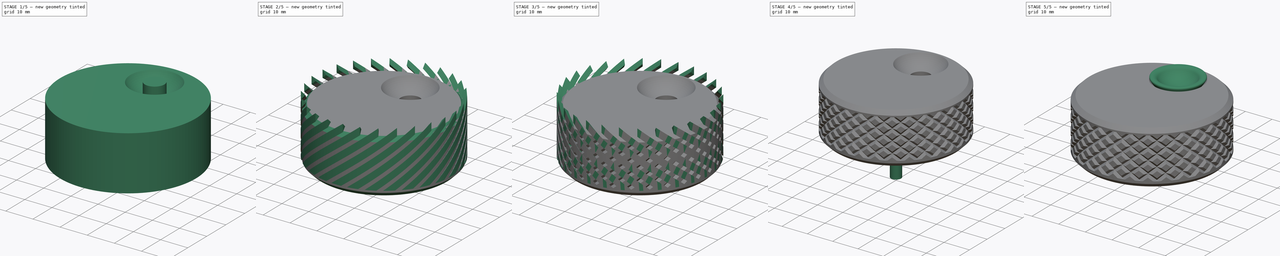
[diagram: build sequence overview — one tinted view per stage of 5, left to right]
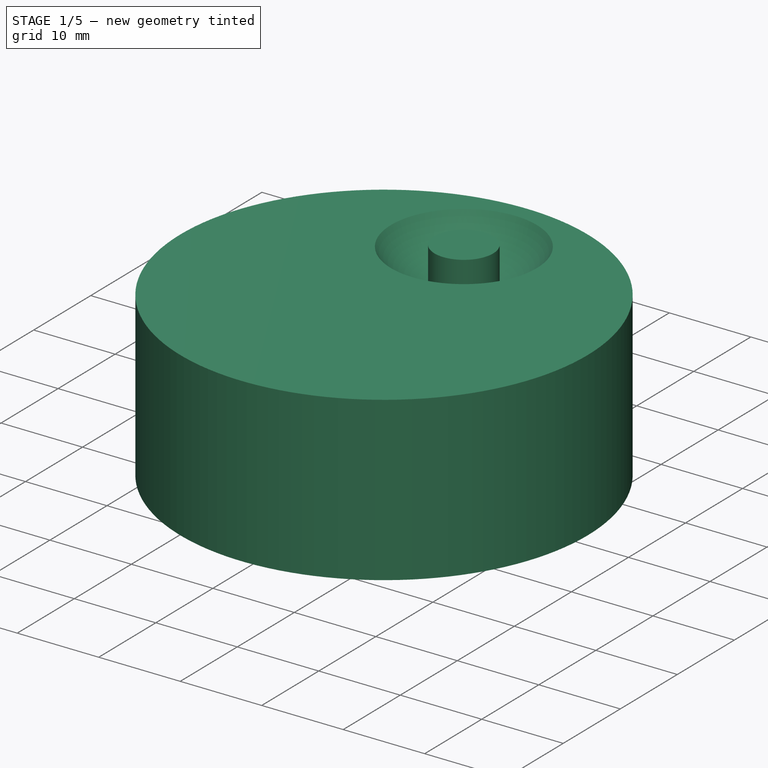
[diagram: stage 1 of 5 — iso view after this stage's code; geometry added in this stage tinted green]
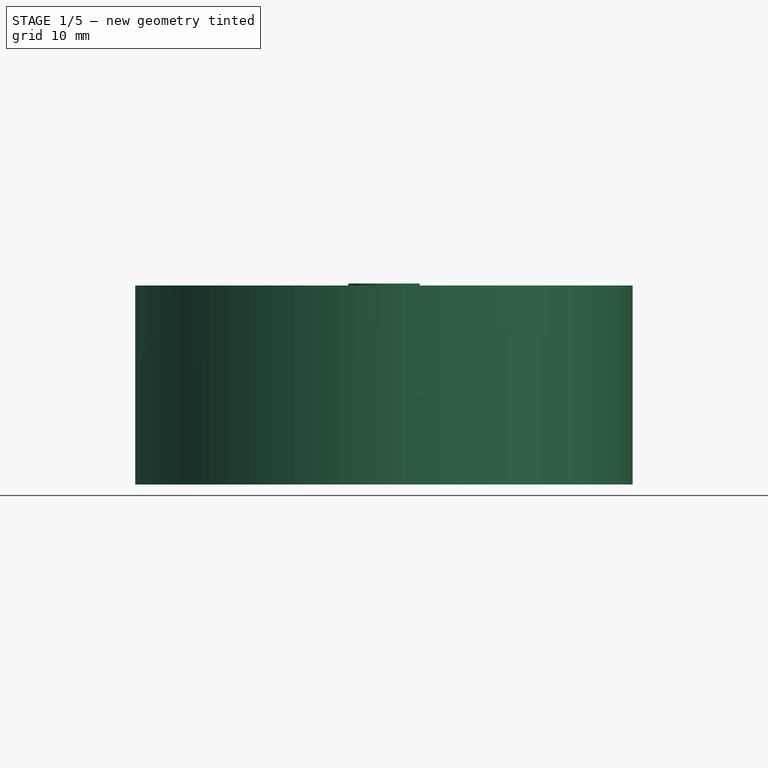
[diagram: stage 1 of 5 — front view after this stage's code; geometry added in this stage tinted green]
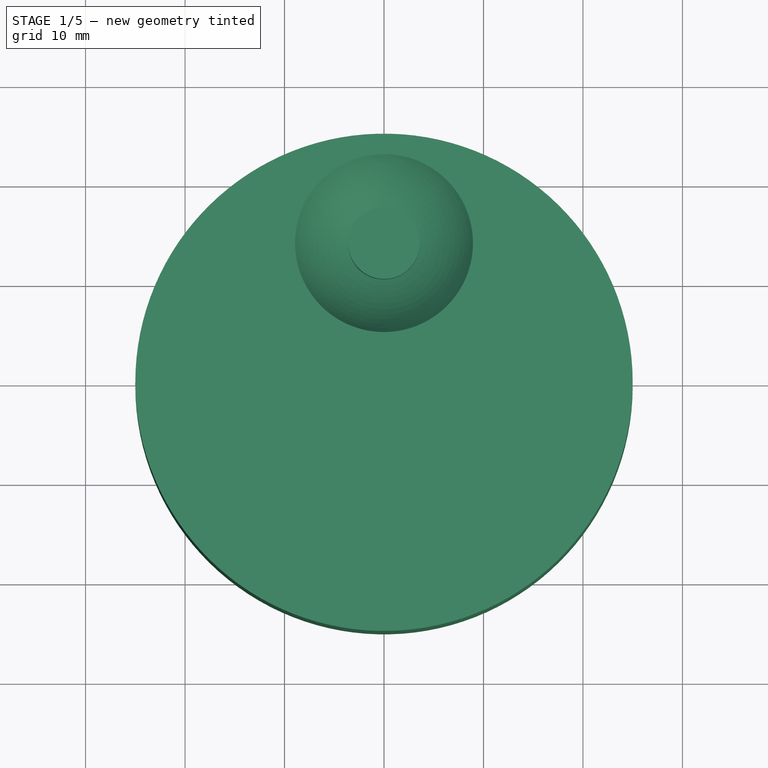
[diagram: stage 1 of 5 — top view after this stage's code; geometry added in this stage tinted green]
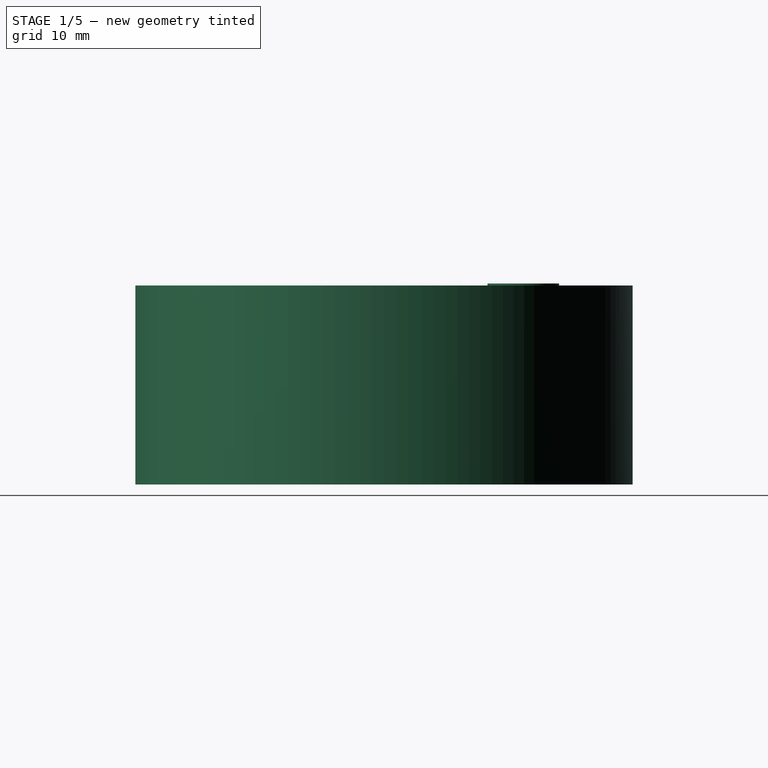
[diagram: stage 1 of 5 — right view after this stage's code; geometry added in this stage tinted green]
FCSTD DOCUMENT  (FreeCAD 0.18R4 (GitTag))
Label: KY040-Kappe gelagert
License: All rights reserved
LicenseURL: http://en.wikipedia.org/wiki/All_rights_reserved
objects: Part::Cut×11, Part::Cylinder×8, Sketcher::SketchObject×7, PartDesign::Body×6, Part::Sphere×3, Part::Fuse×3, PartDesign::Pad×2, Part::Helix×2, PartDesign::SubtractivePipe×2, Part::FeaturePython×2, PartDesign::Revolution×2, PartDesign::Pocket×1, Part::Box×1, Part::Fillet×1, Part::Chamfer×1
note: 59 computed .brp shape members not serialized (recipe doc carries the construction recipe); baked Part::Feature solids carry a one-line shape summary decoded from their .brp

FEATURE [PartDesign::Body] Body001
  Group = -> [Sketch002,Pad001]
  Origin = -> Origin001
  Placement = pos=(0,0,5) rot=(0,0,1;0rad)
  Tip = -> Pad001
FEATURE [Sketcher::SketchObject] Sketch
  MapMode = 5
  Support = -> [XY_Plane]
  sketch-geometry (1):
    g0: Circle CenterX=0 CenterY=0 CenterZ=0 NormalX=0 NormalY=0 NormalZ=1 AngleXU=0 Radius=25
  constraints (3):
    c: Radius(g0) = 25
    c: DistanceX(g-1,g0) = 0
    c: DistanceY(g-1,g0) = 0
FEATURE [PartDesign::Pad] Pad
  Length = 20
  Length2 = 100
  Profile = -> Sketch
  Type = 0
FEATURE [Sketcher::SketchObject] Sketch003
  AttachmentOffset = pos=(0,0,5) rot=(0,0,1;0rad)
  MapMode = 5
  Placement = pos=(0,0,5) rot=(0,0,1;0rad)
  Support = -> [XY_Plane]
  sketch-geometry (1):
    g0: Circle CenterX=0 CenterY=0 CenterZ=0 NormalX=0 NormalY=0 NormalZ=1 AngleXU=0 Radius=18
  constraints (3):
    c: DistanceX(g-1,g0) = 0
    c: DistanceY(g-1,g0) = 0
    c: Radius(g0) = 18
FEATURE [PartDesign::Pocket] Pocket
  BaseFeature = -> Pad
  Length = 10
  Length2 = 100
  Profile = -> Sketch003
  Type = 1
FEATURE [PartDesign::Body] Body004  label="Kugellager"
  Group = -> [Sketch006,Revolution]
  Origin = -> Origin004
  Placement = pos=(0,14,15.2) rot=(0,1,0;1.5708rad)
  Tip = -> Revolution
FEATURE [Part::Cylinder] Cylinder006  label="Zylinder006"
  Angle = 360
  AttacherType = Attacher::AttachEngine3D
  Height = 10
  Placement = pos=(0,14,10.2) rot=(0,0,1;0rad)
  Radius = 3.6
FEATURE [Part::Sphere] Sphere  label="Kugel"
  Angle1 = -90
  Angle2 = 90
  Angle3 = 360
  AttacherType = Attacher::AttachEngine3D
  Placement = pos=(0,14,25.5) rot=(0,0,1;0rad)
  Radius = 10.5
FEATURE [PartDesign::Body] Body005  label="Kugellager2"
  Group = -> [Sketch007,Revolution001]
  Origin = -> Origin005
  Placement = pos=(0,14,12.7) rot=(0,1,0;1.5708rad)
  Tip = -> Revolution001
FEATURE [Part::Cylinder] Cylinder007  label="Zylinder007"
  Angle = 360
  AttacherType = Attacher::AttachEngine3D
  Height = 10
  Placement = pos=(0,14,9.5) rot=(0,0,1;0rad)
  Radius = 2.5
FEATURE [Part::Fuse] Fusion002
  Base = -> Cylinder006
  Tool = -> Cylinder007
FEATURE [Part::Cut] Cut
  Base = -> Body
  Tool = -> Sphere
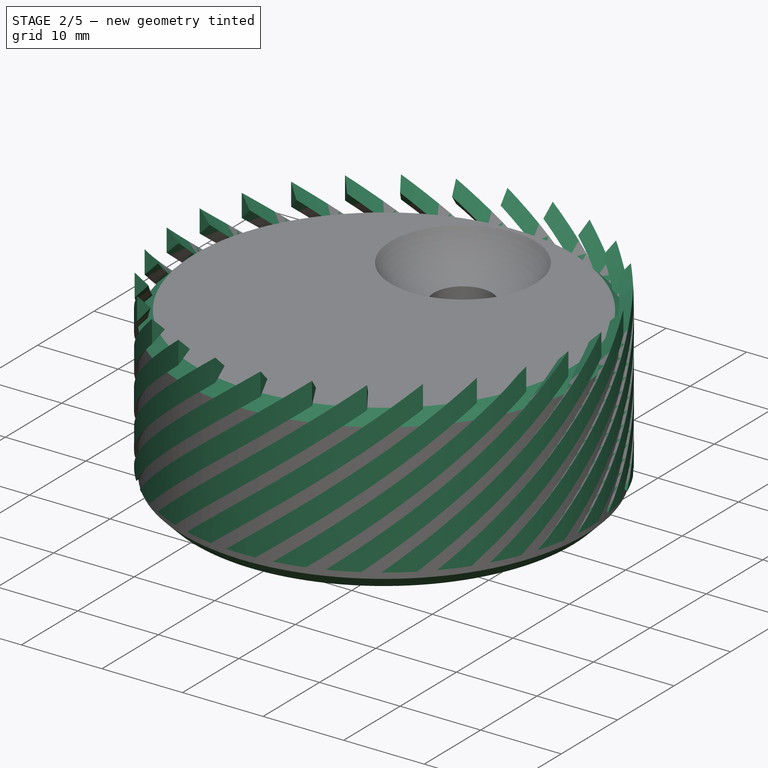
[diagram: stage 2 of 5 — iso view after this stage's code; geometry added in this stage tinted green]
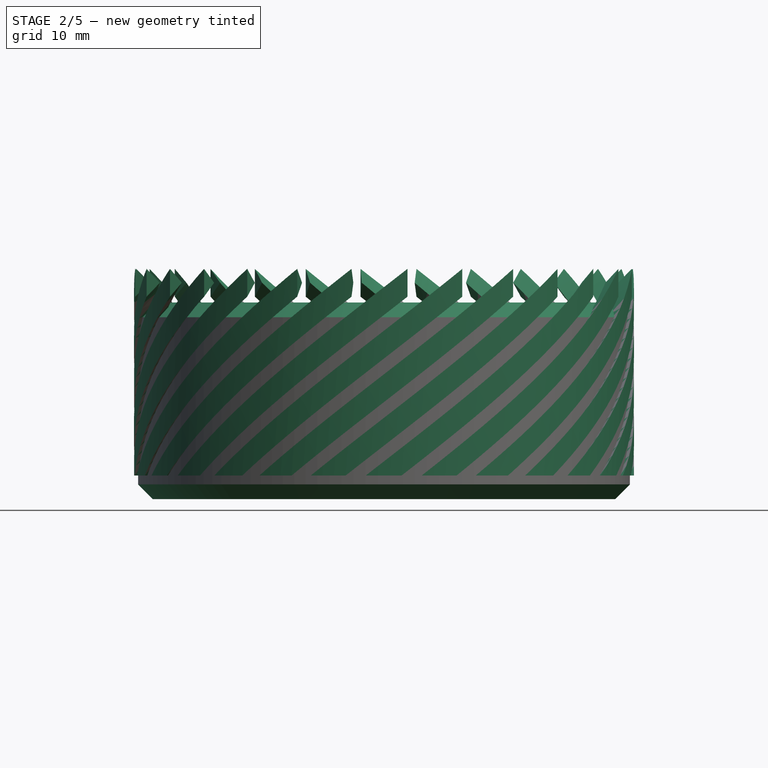
[diagram: stage 2 of 5 — front view after this stage's code; geometry added in this stage tinted green]
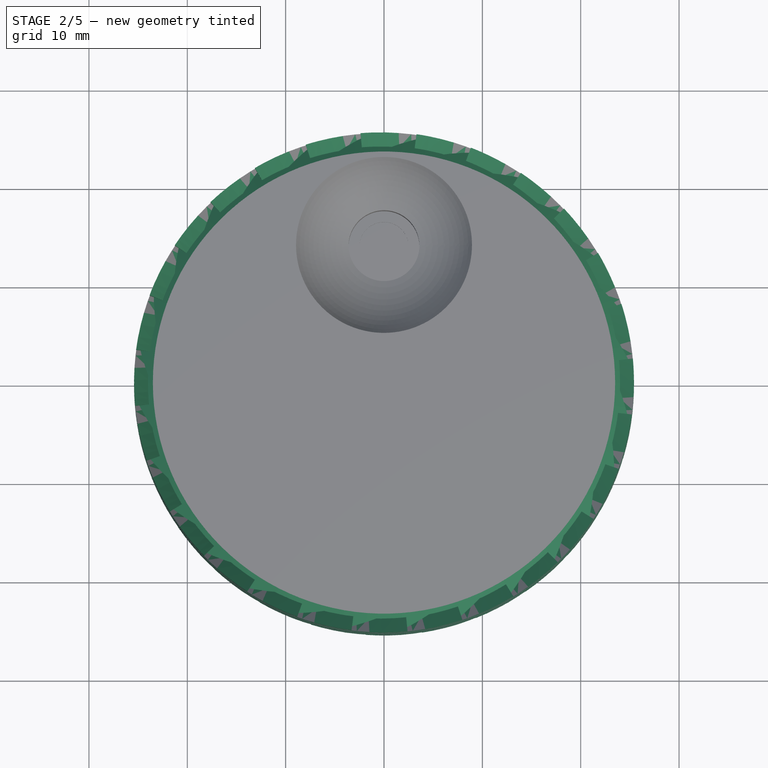
[diagram: stage 2 of 5 — top view after this stage's code; geometry added in this stage tinted green]
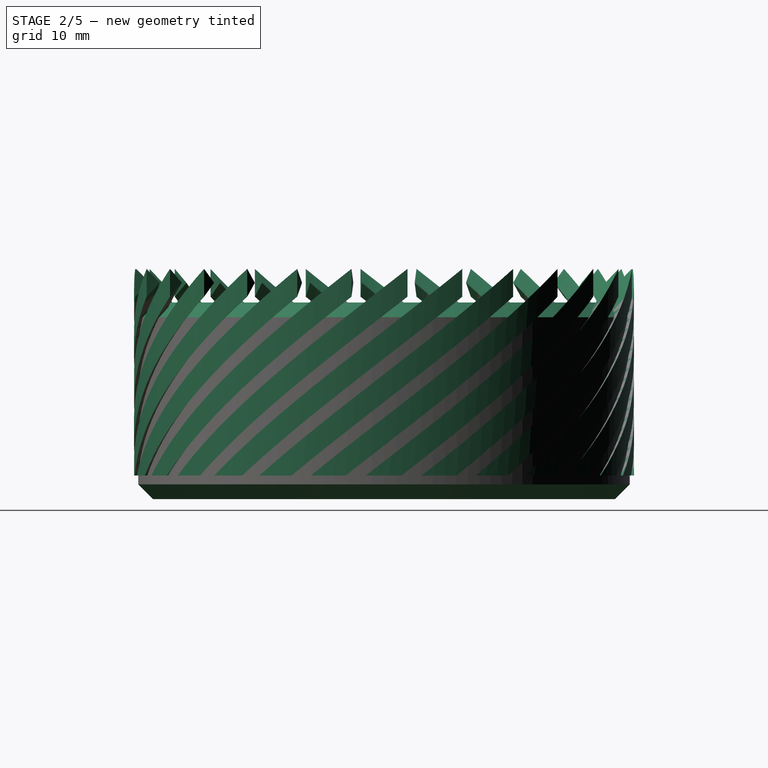
[diagram: stage 2 of 5 — right view after this stage's code; geometry added in this stage tinted green]
FEATURE [Sketcher::SketchObject] Sketch002
  MapMode = 5
  Support = -> [XY_Plane001]
  sketch-geometry (2):
    g0: LineSegment StartX=2.68468 StartY=1.55 StartZ=0 EndX=-2.68468 EndY=1.55 EndZ=0
    g1: ArcOfCircle CenterX=0 CenterY=0 CenterZ=0 NormalX=0 NormalY=0 NormalZ=1 AngleXU=0 Radius=3.1 StartAngle=2.61799 EndAngle=6.80678
  constraints (7):
    c: Radius(g1) = 3.1
    c: DistanceY(g1,g-1) = 0
    c: DistanceX(g-1,g1) = 0
    c: Coincident(g1,g0)
    c: DistanceY(g-1,g0) = 1.55
    c: DistanceY(g-1,g0) = 1.55
    c: Coincident(g0,g1)
FEATURE [PartDesign::Pad] Pad001
  Length = 13
  Length2 = 100
  Profile = -> Sketch002
  Type = 0
FEATURE [Part::Cylinder] Cylinder001  label="Zylinder001"
  Angle = 360
  AttacherType = Attacher::AttachEngine3D
  Height = 10
  Placement = pos=(0,0,-7.6) rot=(0,0,1;0rad)
  Radius = 30
FEATURE [PartDesign::SubtractivePipe] SubtractivePipe
  AuxilleryCurvelinear = false
  AuxillerySpineTangent = false
  Binormal = (0,0,0)
  Mode = 2
  Placement = pos=(0,0,0) rot=(1,0,0;1.5708rad)
  Profile = -> Sketch004
  Spine = -> Helix
  SpineTangent = false
  Transformation = 0
  Transition = 0
FEATURE [PartDesign::Body] Body002
  Group = -> [Sketch004,SubtractivePipe]
  Origin = -> Origin002
  Placement = pos=(0,0,-2) rot=(0,0,1;0rad)
  Tip = -> SubtractivePipe
FEATURE [Part::FeaturePython] Array  # Draft array (typed FeaturePython)
  Angle = 360
  ArrayType = 1
  Axis = (0,0,1)
  Base = -> Body002
  Center = (0,0,0)
  Fuse = false
  IntervalAxis = (0,0,0)
  IntervalX = (1,0,0)
  IntervalY = (0,1,0)
  IntervalZ = (0,0,1)
  NumberPolar = 28
  NumberX = 2
  NumberY = 2
  NumberZ = 1
FEATURE [Part::Cut] Cut002
  Base = -> Array
  Tool = -> Cylinder001
FEATURE [Part::Cut] Cut010
  Base = -> Cut
  Tool = -> Fusion002
FEATURE [Part::Chamfer] Chamfer
  Base = -> Cut010
  Edges = 2 edges r=1.5: [Edge2,Edge3]
FEATURE [Part::Cut] Cut011
  Base = -> Chamfer
  Tool = -> Body001
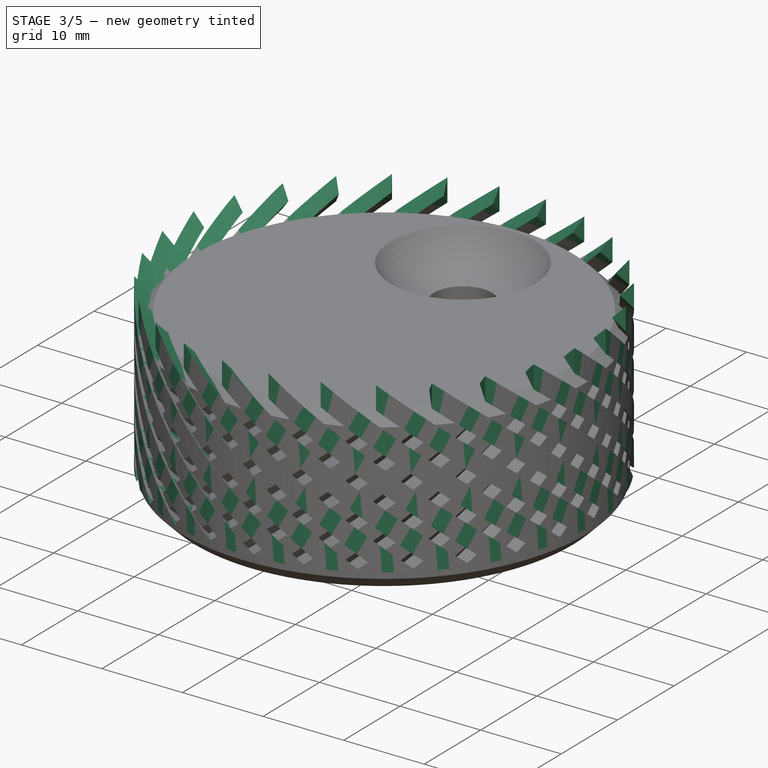
[diagram: stage 3 of 5 — iso view after this stage's code; geometry added in this stage tinted green]
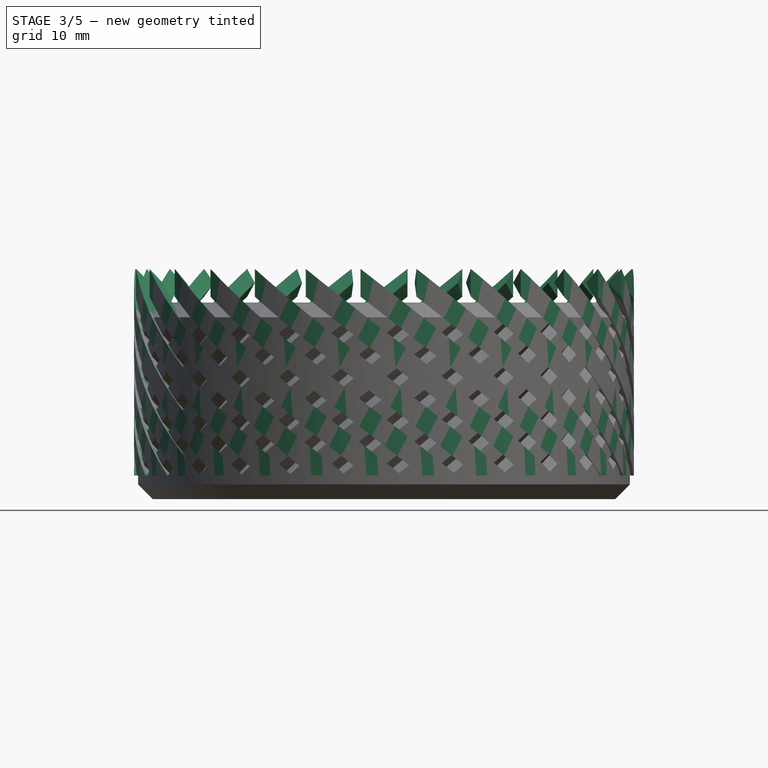
[diagram: stage 3 of 5 — front view after this stage's code; geometry added in this stage tinted green]
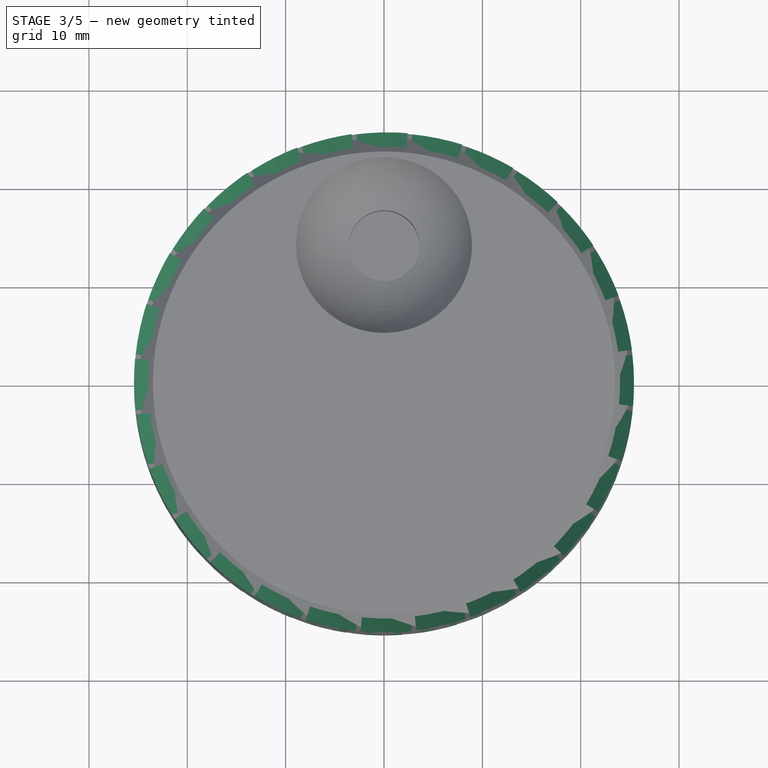
[diagram: stage 3 of 5 — top view after this stage's code; geometry added in this stage tinted green]
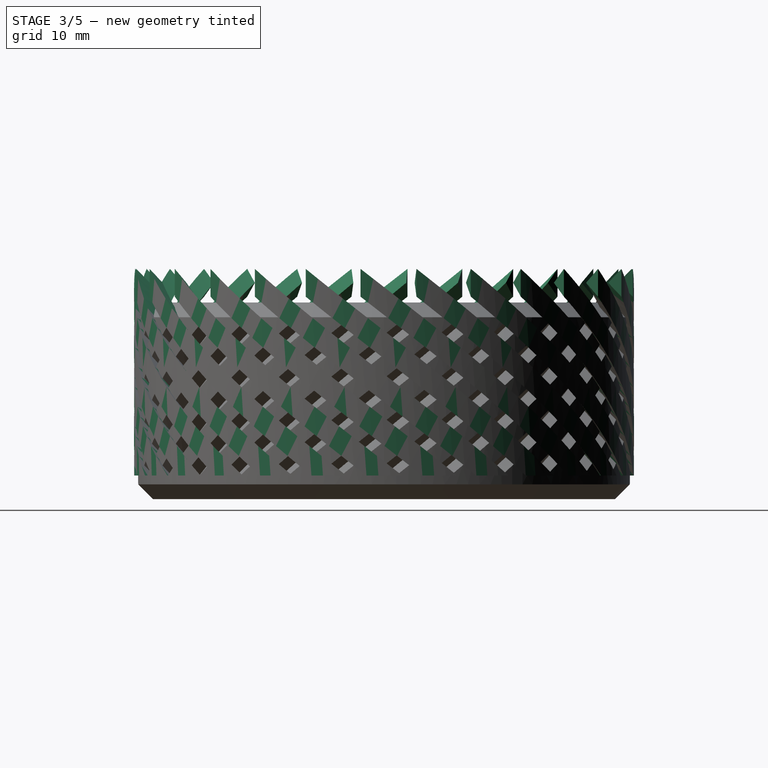
[diagram: stage 3 of 5 — right view after this stage's code; geometry added in this stage tinted green]
FEATURE [PartDesign::Body] Body  label="Outer"
  Group = -> [Sketch,Pad,Sketch003,Pocket]
  Origin = -> Origin
  Tip = -> Pocket
FEATURE [Part::Helix] Helix
  Angle = 0
  AttacherType = Attacher::AttachEngine3D
  Height = 24
  LocalCoord = 0
  Pitch = 124
  Placement = pos=(0,0,-2) rot=(0,0,1;0rad)
  Radius = 25
  Style = 1
FEATURE [Sketcher::SketchObject] Sketch004
  MapMode = 5
  Placement = pos=(0,0,0) rot=(1,0,0;1.5708rad)
  Support = -> [XZ_Plane002]
  sketch-geometry (4):
    g0: LineSegment StartX=25.4142 StartY=1.41421 StartZ=0 EndX=24 EndY=0 EndZ=0
    g1: LineSegment StartX=24 StartY=0 StartZ=0 EndX=25.4142 EndY=-1.41421 EndZ=0
    g2: LineSegment StartX=25.4142 StartY=-1.41421 StartZ=0 EndX=25.4142 EndY=1.41421 EndZ=0
    g3: Circle [constr] CenterX=24.933 CenterY=3.4e-15 CenterZ=0 NormalX=0 NormalY=0 NormalZ=1 AngleXU=0 Radius=1.49383
  constraints (11):
    c: Coincident(g0,g1)
    c: Coincident(g1,g2)
    c: Coincident(g2,g0)
    c: Equal(g0,g1)
    c: PointOnObject(g1,g3)
    c: PointOnObject(g2,g3)
    c: DistanceX(g-1,g0) = 24
    c: Angle(g1,g0) = 1.5708
    c: Angle(g-1,g2) = 1.5708
    c: Distance(g1) = 2
    c: DistanceY(g-1,g0) = 0
FEATURE [Part::Helix] Helix001
  Angle = 0
  AttacherType = Attacher::AttachEngine3D
  Height = 24
  LocalCoord = 1
  Pitch = 124
  Placement = pos=(0,0,-2) rot=(0,0,1;0rad)
  Radius = 25
  Style = 1
FEATURE [Sketcher::SketchObject] Sketch005
  MapMode = 5
  Placement = pos=(0,0,0) rot=(1,0,0;1.5708rad)
  Support = -> [XZ_Plane003]
  sketch-geometry (4):
    g0: LineSegment StartX=25.4142 StartY=1.41421 StartZ=0 EndX=24 EndY=0 EndZ=0
    g1: LineSegment StartX=24 StartY=0 StartZ=0 EndX=25.4142 EndY=-1.41421 EndZ=0
    g2: LineSegment StartX=25.4142 StartY=-1.41421 StartZ=0 EndX=25.4142 EndY=1.41421 EndZ=0
    g3: Circle [constr] CenterX=24.933 CenterY=3.4e-15 CenterZ=0 NormalX=0 NormalY=0 NormalZ=1 AngleXU=0 Radius=1.49383
  constraints (11):
    c: Coincident(g0,g1)
    c: Coincident(g1,g2)
    c: Coincident(g2,g0)
    c: Equal(g0,g1)
    c: PointOnObject(g1,g3)
    c: PointOnObject(g2,g3)
    c: DistanceX(g-1,g0) = 24
    c: Angle(g1,g0) = 1.5708
    c: Angle(g-1,g2) = 1.5708
    c: Distance(g1) = 2
    c: DistanceY(g-1,g0) = 0
FEATURE [PartDesign::SubtractivePipe] SubtractivePipe001
  AuxilleryCurvelinear = false
  AuxillerySpineTangent = false
  Binormal = (0,0,0)
  Mode = 2
  Placement = pos=(0,0,0) rot=(1,0,0;1.5708rad)
  Profile = -> Sketch005
  Spine = -> Helix001
  SpineTangent = false
  Transformation = 0
  Transition = 0
FEATURE [PartDesign::Body] Body003
  Group = -> [Sketch005,SubtractivePipe001]
  Origin = -> Origin003
  Placement = pos=(0,0,-2) rot=(0,0,1;0rad)
  Tip = -> SubtractivePipe001
FEATURE [Part::FeaturePython] Array001  # Draft array (typed FeaturePython)
  Angle = 360
  ArrayType = 1
  Axis = (0,0,1)
  Base = -> Body003
  Center = (0,0,0)
  Fuse = false
  IntervalAxis = (0,0,0)
  IntervalX = (1,0,0)
  IntervalY = (0,1,0)
  IntervalZ = (0,0,1)
  NumberPolar = 28
  NumberX = 2
  NumberY = 2
  NumberZ = 1
FEATURE [Part::Cylinder] Cylinder  label="Zylinder"
  Angle = 360
  AttacherType = Attacher::AttachEngine3D
  Height = 10
  Placement = pos=(0,0,-7.6) rot=(0,0,1;0rad)
  Radius = 30
FEATURE [Part::Cylinder] Cylinder003  label="Zylinder003"
  Angle = 360
  AttacherType = Attacher::AttachEngine3D
  Height = 10
  Placement = pos=(0,0,17.928) rot=(0,0,1;0rad)
  Radius = 30
FEATURE [Part::Cut] Cut001
  Base = -> Array001
  Tool = -> Cylinder
FEATURE [Part::Cut] Cut004  label="Rändelung1"
  Base = -> Cut002
  Tool = -> Cylinder003
FEATURE [Part::Cut] Cut012
  Base = -> Cut011
  Tool = -> Cut004
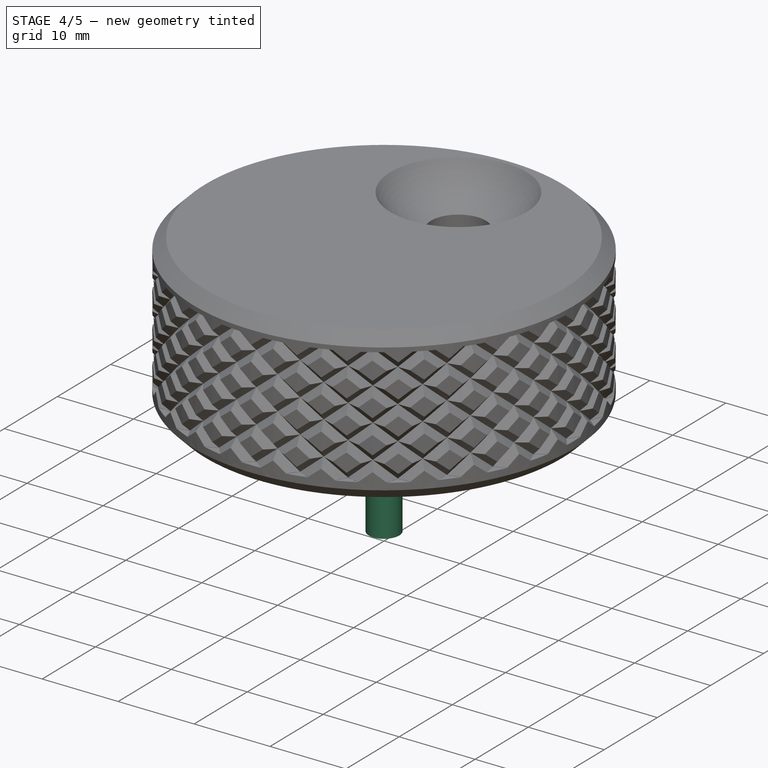
[diagram: stage 4 of 5 — iso view after this stage's code; geometry added in this stage tinted green]
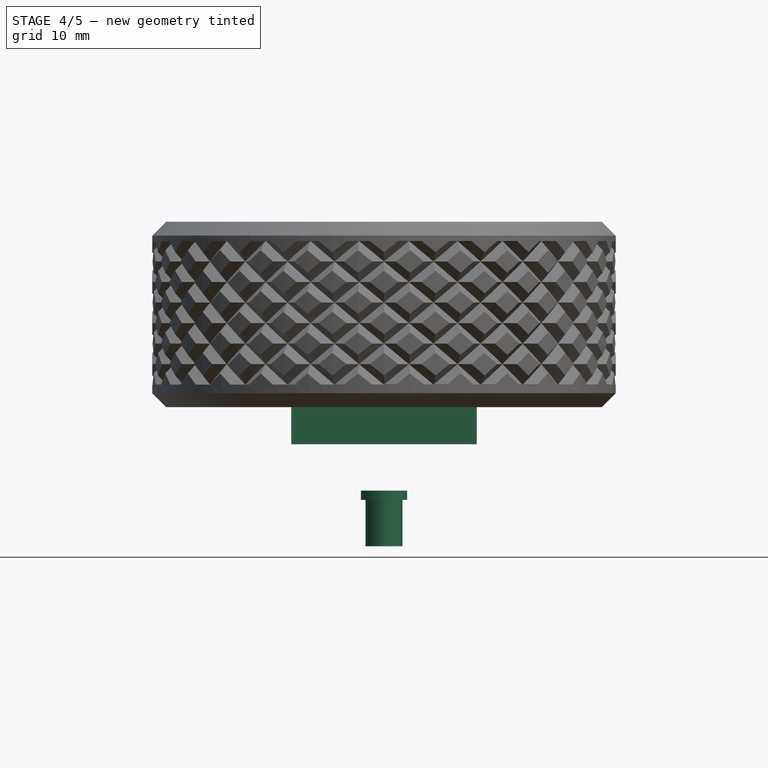
[diagram: stage 4 of 5 — front view after this stage's code; geometry added in this stage tinted green]
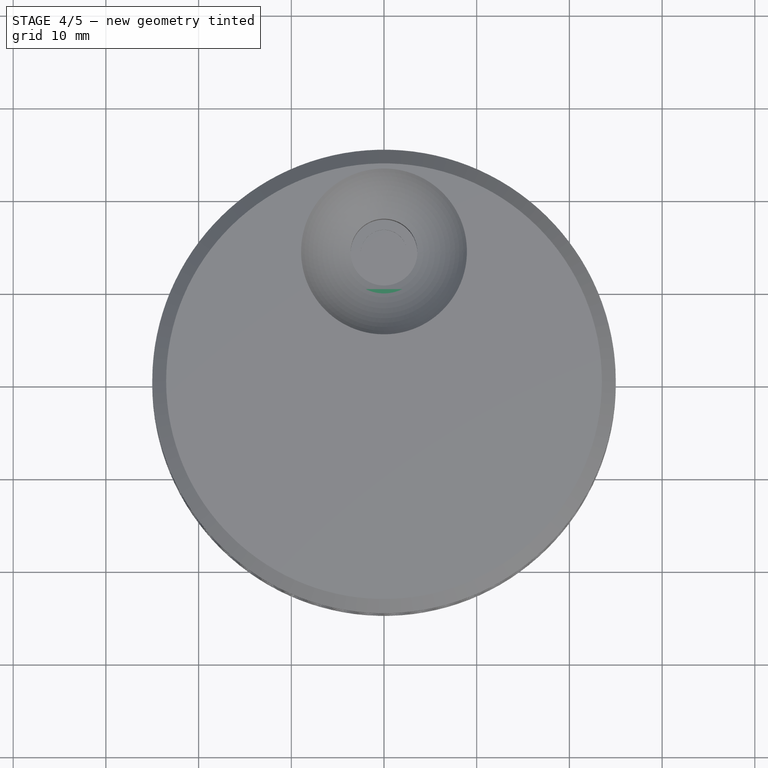
[diagram: stage 4 of 5 — top view after this stage's code; geometry added in this stage tinted green]
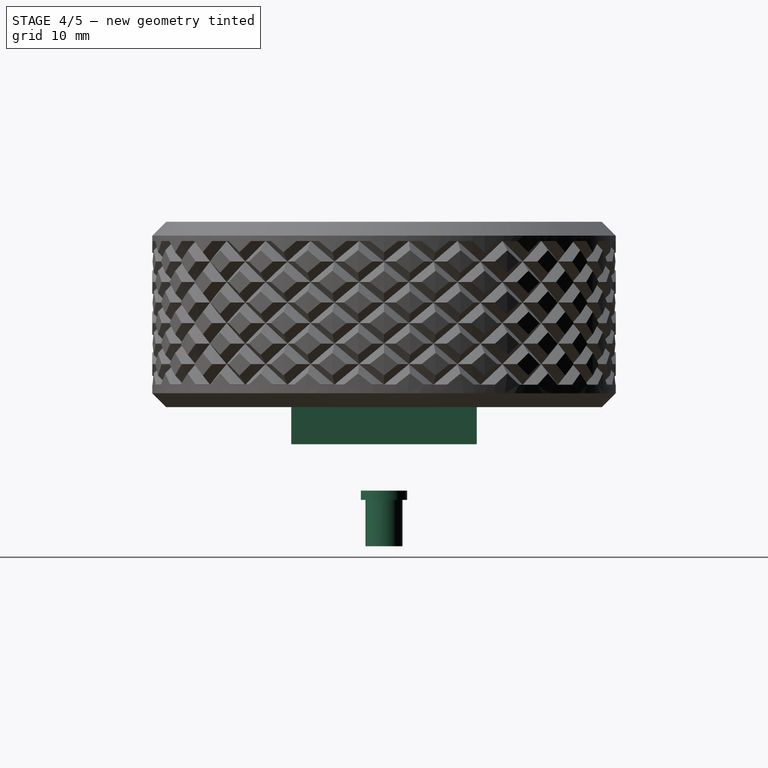
[diagram: stage 4 of 5 — right view after this stage's code; geometry added in this stage tinted green]
FEATURE [Part::Cylinder] Cylinder002  label="Zylinder002"
  Angle = 360
  AttacherType = Attacher::AttachEngine3D
  Height = 10
  Placement = pos=(0,0,17.928) rot=(0,0,1;0rad)
  Radius = 30
FEATURE [Part::Cut] Cut003  label="Rändelung2"
  Base = -> Cut001
  Tool = -> Cylinder002
FEATURE [Part::Box] Box  label="Würfel"
  AttacherType = Attacher::AttachEngine3D
  Height = 20
  Length = 20
  Placement = pos=(-10,-10,-4) rot=(0,0,1;0rad)
  Width = 20
FEATURE [Part::Cylinder] Cylinder004  label="Zylinder004"
  Angle = 360
  AttacherType = Attacher::AttachEngine3D
  Height = 1
  Placement = pos=(0,0,-10) rot=(0,0,1;0rad)
  Radius = 2.5
FEATURE [Part::Cylinder] Cylinder005  label="Zylinder005"
  Angle = 360
  AttacherType = Attacher::AttachEngine3D
  Height = 5
  Placement = pos=(0,0,-15) rot=(0,0,1;0rad)
  Radius = 2
FEATURE [Sketcher::SketchObject] Sketch006
  MapMode = 5
  Placement = pos=(0,0,0) rot=(1,0,0;1.5708rad)
  Support = -> [XZ_Plane004]
  sketch-geometry (12):
    g0: LineSegment StartX=-2e-16 StartY=3.5 StartZ=0 EndX=-1e-16 EndY=3 EndZ=0
    g1: LineSegment StartX=-1e-16 StartY=3 StartZ=0 EndX=0.2 EndY=3 EndZ=0
    g2: LineSegment StartX=0.2 StartY=3 StartZ=0 EndX=0.2 EndY=2.5 EndZ=0
    g3: LineSegment StartX=0.2 StartY=2.5 StartZ=0 EndX=-1e-16 EndY=2.5 EndZ=0
    g4: LineSegment StartX=-1e-16 StartY=2.5 StartZ=0 EndX=0 EndY=2 EndZ=0
    g5: LineSegment StartX=0 StartY=2 StartZ=0 EndX=2.5 EndY=2 EndZ=0
    g6: LineSegment StartX=2.5 StartY=2 StartZ=0 EndX=2.5 EndY=2.5 EndZ=0
    g7: LineSegment StartX=2.5 StartY=2.5 StartZ=0 EndX=2.3 EndY=2.5 EndZ=0
    g8: LineSegment StartX=2.3 StartY=2.5 StartZ=0 EndX=2.3 EndY=3 EndZ=0
    g9: LineSegment StartX=2.3 StartY=3 StartZ=0 EndX=2.5 EndY=3 EndZ=0
    g10: LineSegment StartX=2.5 StartY=3 StartZ=0 EndX=2.5 EndY=3.5 EndZ=0
    g11: LineSegment StartX=2.5 StartY=3.5 StartZ=0 EndX=0 EndY=3.5 EndZ=0
  constraints (36):
    c: Equal(g4,g0)
    c: Equal(g0,g10)
    c: Equal(g10,g6)
    c: Equal(g6,g2)
    c: Equal(g2,g8)
    c: Coincident(g0,g1)
    c: Coincident(g1,g2)
    c: Coincident(g2,g3)
    c: Coincident(g3,g4)
    c: Coincident(g4,g5)
    c: Coincident(g5,g6)
    c: Coincident(g6,g7)
    c: Coincident(g7,g8)
    c: Coincident(g8,g9)
    c: Coincident(g9,g10)
    c: Coincident(g10,g11)
    c: Coincident(g11,g0)
    c: Parallel(g10,g0)
    c: Parallel(g0,g4)
    c: Parallel(g4,g6)
    c: Equal(g11,g5)
    c: Parallel(g1,g3)
    c: Parallel(g9,g7)
    c: Angle(g-2,g11) = 1.5708
    c: Angle(g0,g11) = 1.5708
    c: Angle(g1,g0) = 1.5708
    c: Angle(g1,g2) = 1.5708
    c: Angle(g10,g9) = 1.5708
    c: Equal(g1,g9)
    c: Equal(g9,g7)
    c: Equal(g7,g3)
    c: DistanceY(g-1,g4) = 2
    c: Distance(g1) = 0.2
    c: DistanceY(g-1,g0) = 3.5
    c: DistanceX(g5,g5) = 2.5
    c: DistanceX(g-1,g4) = 0
FEATURE [PartDesign::Revolution] Revolution
  Angle = 360
  Axis = (1,0,0)
  Base = (0,0,0)
  Midplane = true
  Placement = pos=(0,0,0) rot=(1,0,0;1.5708rad)
  Profile = -> Sketch006
  ReferenceAxis = -> X_Axis004
FEATURE [Sketcher::SketchObject] Sketch007
  MapMode = 5
  Placement = pos=(0,0,0) rot=(1,0,0;1.5708rad)
  Support = -> [XZ_Plane005]
  sketch-geometry (12):
    g0: LineSegment StartX=-2e-16 StartY=3.5 StartZ=0 EndX=-1e-16 EndY=3 EndZ=0
    g1: LineSegment StartX=-1e-16 StartY=3 StartZ=0 EndX=0.2 EndY=3 EndZ=0
    g2: LineSegment StartX=0.2 StartY=3 StartZ=0 EndX=0.2 EndY=2.5 EndZ=0
    g3: LineSegment StartX=0.2 StartY=2.5 StartZ=0 EndX=-1e-16 EndY=2.5 EndZ=0
    g4: LineSegment StartX=-1e-16 StartY=2.5 StartZ=0 EndX=0 EndY=2 EndZ=0
    g5: LineSegment StartX=0 StartY=2 StartZ=0 EndX=2.5 EndY=2 EndZ=0
    g6: LineSegment StartX=2.5 StartY=2 StartZ=0 EndX=2.5 EndY=2.5 EndZ=0
    g7: LineSegment StartX=2.5 StartY=2.5 StartZ=0 EndX=2.3 EndY=2.5 EndZ=0
    g8: LineSegment StartX=2.3 StartY=2.5 StartZ=0 EndX=2.3 EndY=3 EndZ=0
    g9: LineSegment StartX=2.3 StartY=3 StartZ=0 EndX=2.5 EndY=3 EndZ=0
    g10: LineSegment StartX=2.5 StartY=3 StartZ=0 EndX=2.5 EndY=3.5 EndZ=0
    g11: LineSegment StartX=2.5 StartY=3.5 StartZ=0 EndX=0 EndY=3.5 EndZ=0
  constraints (36):
    c: Equal(g4,g0)
    c: Equal(g0,g10)
    c: Equal(g10,g6)
    c: Equal(g6,g2)
    c: Equal(g2,g8)
    c: Coincident(g0,g1)
    c: Coincident(g1,g2)
    c: Coincident(g2,g3)
    c: Coincident(g3,g4)
    c: Coincident(g4,g5)
    c: Coincident(g5,g6)
    c: Coincident(g6,g7)
    c: Coincident(g7,g8)
    c: Coincident(g8,g9)
    c: Coincident(g9,g10)
    c: Coincident(g10,g11)
    c: Coincident(g11,g0)
    c: Parallel(g10,g0)
    c: Parallel(g0,g4)
    c: Parallel(g4,g6)
    c: Equal(g11,g5)
    c: Parallel(g1,g3)
    c: Parallel(g9,g7)
    c: Angle(g-2,g11) = 1.5708
    c: Angle(g0,g11) = 1.5708
    c: Angle(g1,g0) = 1.5708
    c: Angle(g1,g2) = 1.5708
    c: Angle(g10,g9) = 1.5708
    c: Equal(g1,g9)
    c: Equal(g9,g7)
    c: Equal(g7,g3)
    c: DistanceY(g-1,g4) = 2
    c: Distance(g1) = 0.2
    c: DistanceY(g-1,g0) = 3.5
    c: DistanceX(g5,g5) = 2.5
    c: DistanceX(g-1,g4) = 0
FEATURE [PartDesign::Revolution] Revolution001
  Angle = 360
  Axis = (1,0,0)
  Base = (0,0,0)
  Midplane = true
  Placement = pos=(0,0,0) rot=(1,0,0;1.5708rad)
  Profile = -> Sketch007
  ReferenceAxis = -> X_Axis005
FEATURE [Part::Cut] Cut013
  Base = -> Cut012
  Tool = -> Cut003
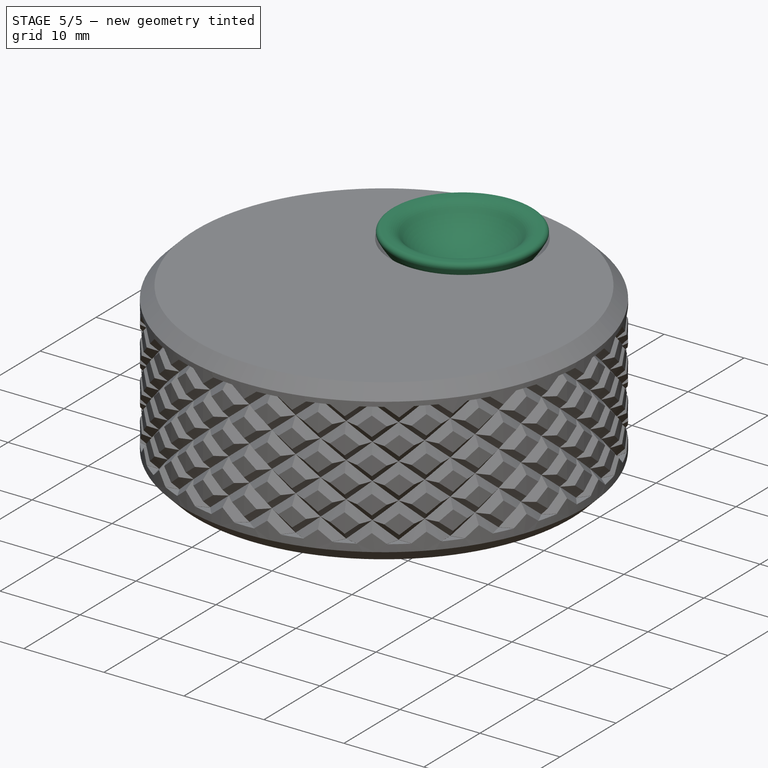
[diagram: stage 5 of 5 — iso view after this stage's code; geometry added in this stage tinted green]
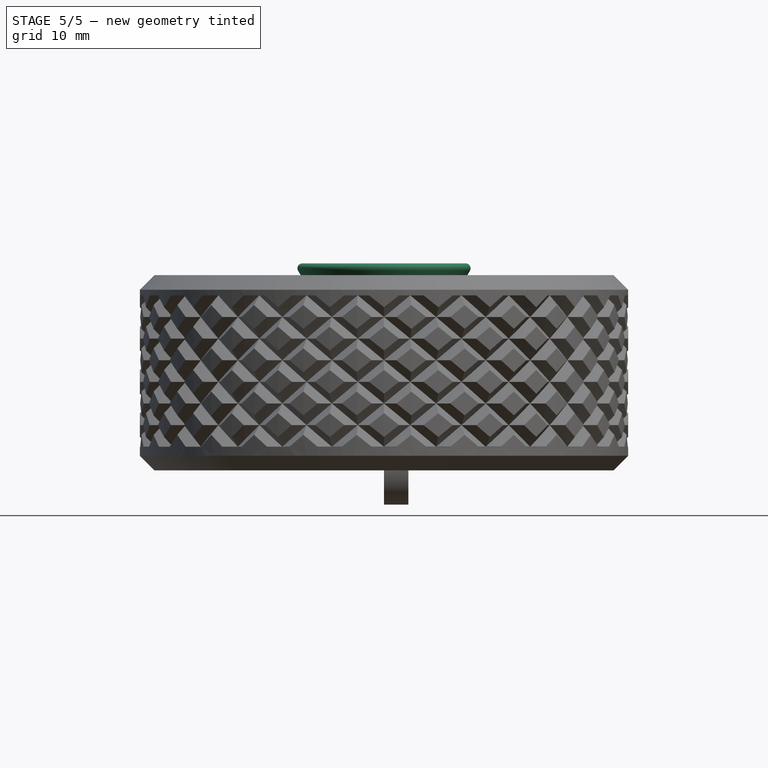
[diagram: stage 5 of 5 — front view after this stage's code; geometry added in this stage tinted green]
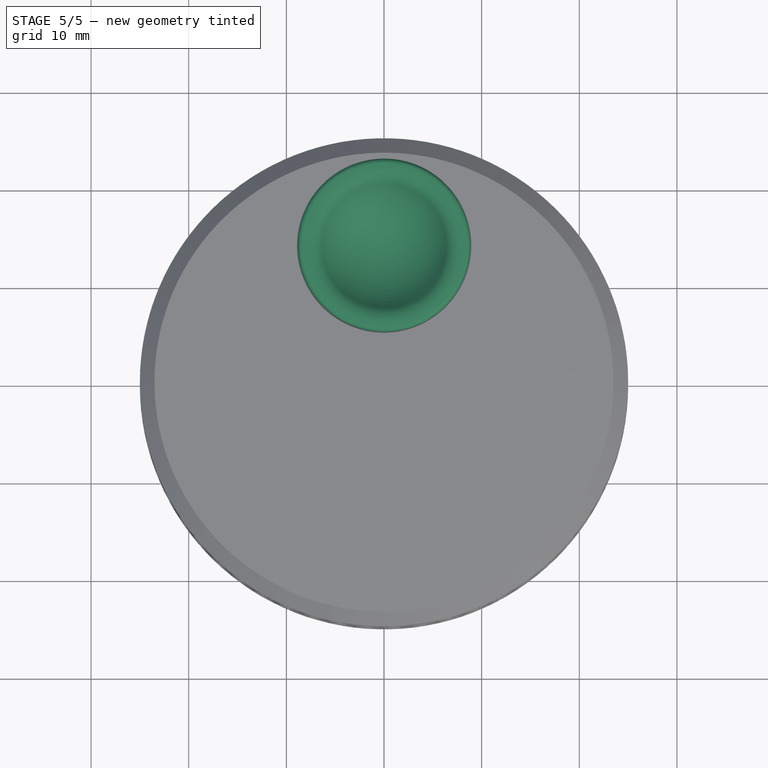
[diagram: stage 5 of 5 — top view after this stage's code; geometry added in this stage tinted green]
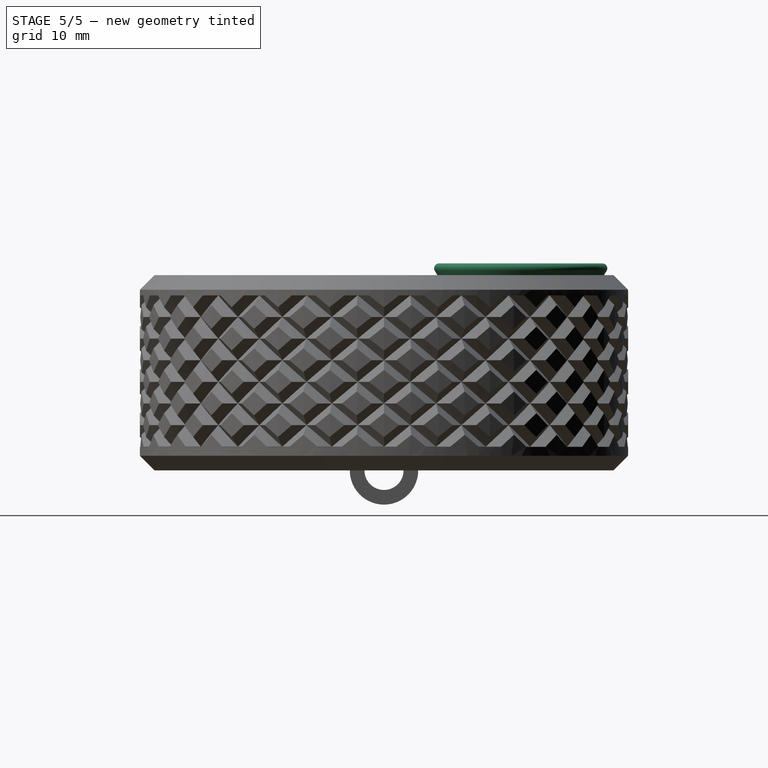
[diagram: stage 5 of 5 — right view after this stage's code; geometry added in this stage tinted green]
FEATURE [Part::Sphere] Sphere001  label="Kugel001"
  Angle1 = -90
  Angle2 = 90
  Angle3 = 360
  AttacherType = Attacher::AttachEngine3D
  Radius = 8
FEATURE [Part::Sphere] Sphere002  label="Kugel002"
  Angle1 = -90
  Angle2 = 90
  Angle3 = 360
  AttacherType = Attacher::AttachEngine3D
  Radius = 10
FEATURE [Part::Cut] Cut009
  Base = -> Sphere002
  Tool = -> Sphere001
FEATURE [Part::Cut] Cut008
  Base = -> Cut009
  Tool = -> Box
FEATURE [Part::Fuse] Fusion
  Base = -> Cut008
  Tool = -> Cylinder004
FEATURE [Part::Fuse] Fusion001
  Base = -> Cylinder005
  Tool = -> Fusion
FEATURE [Part::Fillet] Fillet001  label="Fingermulde"
  Base = -> Fusion001
  Edges = 2 edges: [Edge8 r=0.5,Edge9 r=2]
  Placement = pos=(0,14,25.2) rot=(0,0,1;0rad)
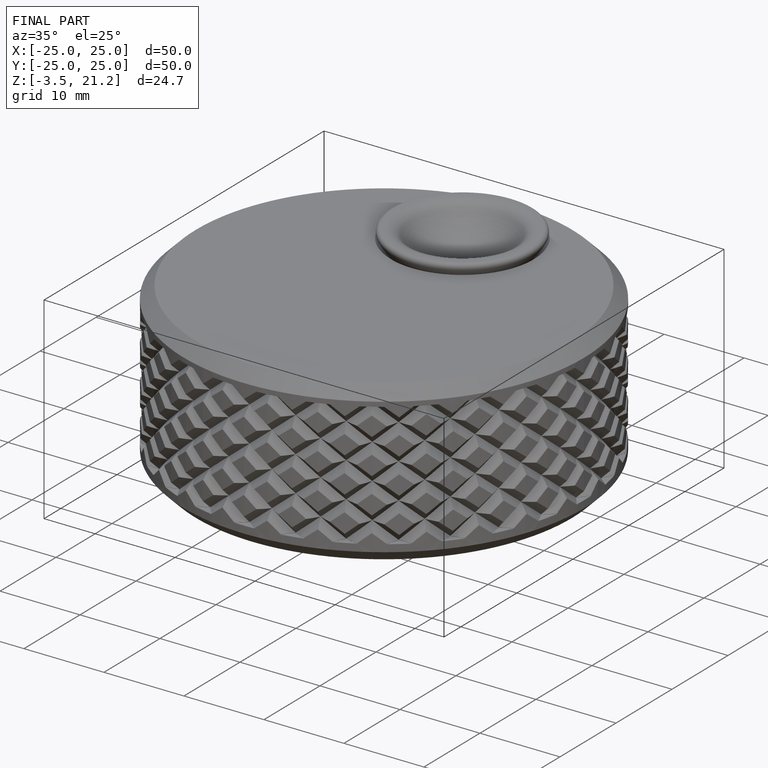
[diagram: finished part — iso view with bounding-box wireframe]
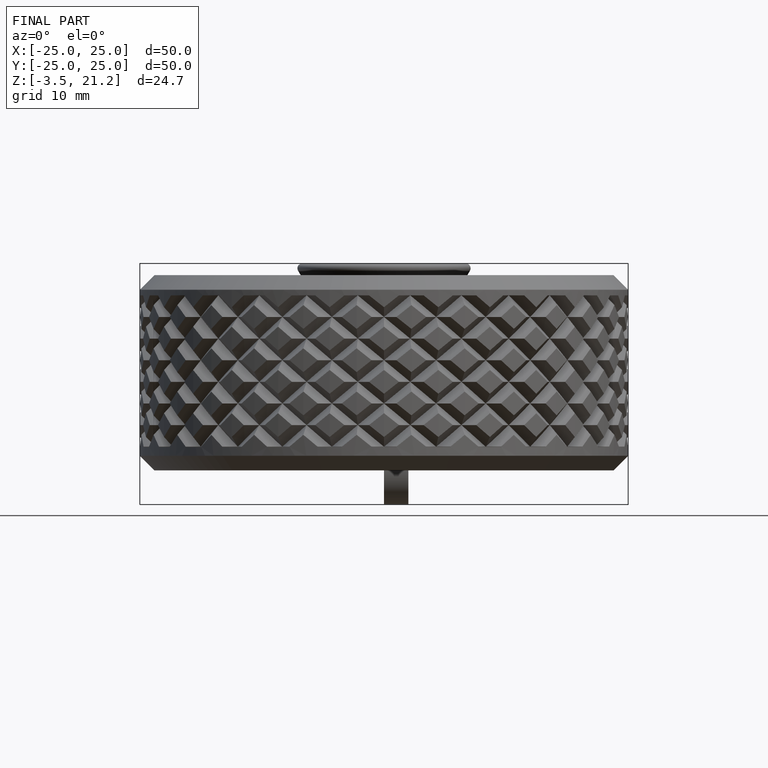
[diagram: finished part — front view with bounding-box wireframe]
